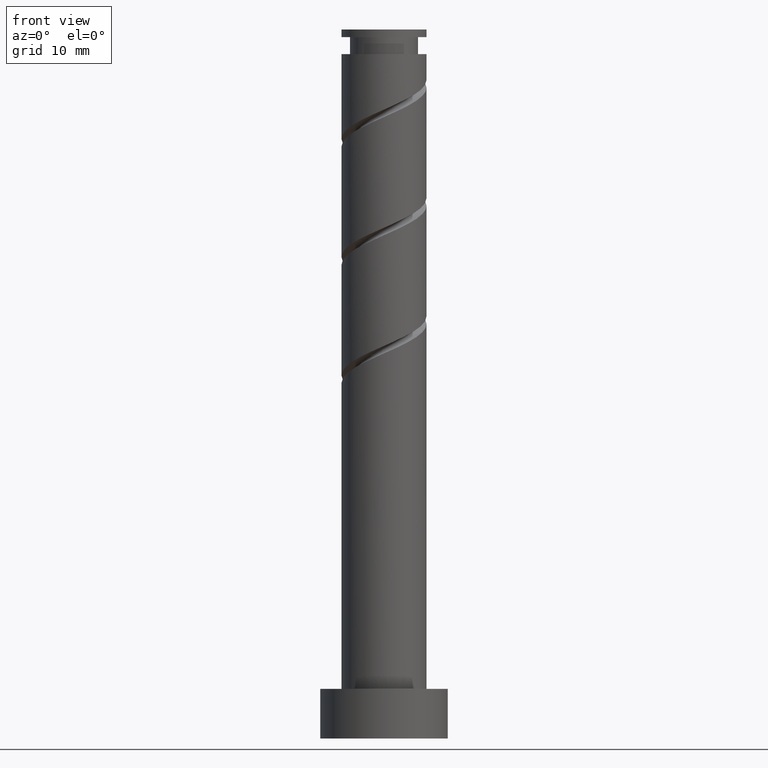
[diagram: clean part render]
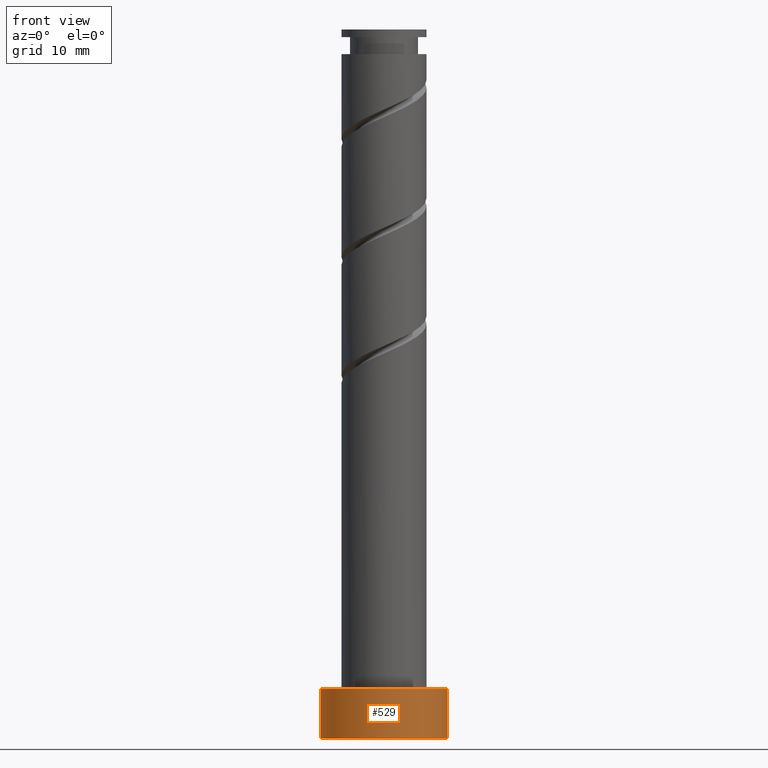
[diagram: same view with one face highlighted and labeled with its STEP entity id]
A machine part, front view. The second image highlights one B-rep face of the part: STEP entity #529.
In plain terms, the highlighted cylindrical surface (partial cylindrical patch) has radius 9 mm, axis along (-0, -0, -1).
Its self-contained STEP definition (entity closure, byte-faithful):
#13 = EDGE_LOOP ( 'NONE', ( #373, #1026, #130, #403 ) ) ;
#77 = FACE_OUTER_BOUND ( 'NONE', #13, .T. ) ;
#125 = VERTEX_POINT ( 'NONE', #1337 ) ;
#130 = ORIENTED_EDGE ( 'NONE', *, *, #882, .T. ) ;
#201 = DIRECTION ( 'NONE',  ( -0.000000000000000000, -0.000000000000000000, -1.000000000000000000 ) ) ;
#217 = CARTESIAN_POINT ( 'NONE',  ( -9.000000000000000000, 0.000000000000000000, 7.000000000000000000 ) ) ;
#234 = DIRECTION ( 'NONE',  ( 0.000000000000000000, 0.000000000000000000, 1.000000000000000000 ) ) ;
#261 = AXIS2_PLACEMENT_3D ( 'NONE', #937, #234, #1395 ) ;
#262 = CARTESIAN_POINT ( 'NONE',  ( -9.000000000000000000, 0.000000000000000000, 0.000000000000000000 ) ) ;
#306 = VERTEX_POINT ( 'NONE', #610 ) ;
#311 = CIRCLE ( 'NONE', #261, 9.000000000000000000 ) ;
#328 = DIRECTION ( 'NONE',  ( -1.000000000000000000, 0.000000000000000000, 0.000000000000000000 ) ) ;
#373 = ORIENTED_EDGE ( 'NONE', *, *, #869, .F. ) ;
#375 = VECTOR ( 'NONE', #201, 1000.000000000000000 ) ;
#403 = ORIENTED_EDGE ( 'NONE', *, *, #1340, .T. ) ;
#408 = VERTEX_POINT ( 'NONE', #1440 ) ;
#515 = DIRECTION ( 'NONE',  ( 0.000000000000000000, 0.000000000000000000, 1.000000000000000000 ) ) ;
#529 = ADVANCED_FACE ( 'NONE', ( #77 ), #1221, .T. ) ;
#610 = CARTESIAN_POINT ( 'NONE',  ( 9.000000000000000000, 1.102182119232617714E-15, 7.000000000000000000 ) ) ;
#626 = CARTESIAN_POINT ( 'NONE',  ( 0.000000000000000000, 0.000000000000000000, 0.000000000000000000 ) ) ;
#633 = AXIS2_PLACEMENT_3D ( 'NONE', #978, #867, #328 ) ;
#707 = AXIS2_PLACEMENT_3D ( 'NONE', #626, #515, #1349 ) ;
#867 = DIRECTION ( 'NONE',  ( -0.000000000000000000, -0.000000000000000000, -1.000000000000000000 ) ) ;
#869 = EDGE_CURVE ( 'NONE', #306, #125, #902, .T. ) ;
#882 = EDGE_CURVE ( 'NONE', #408, #1405, #1009, .T. ) ;
#902 = LINE ( 'NONE', #1237, #375 ) ;
#937 = CARTESIAN_POINT ( 'NONE',  ( 0.000000000000000000, 0.000000000000000000, 7.000000000000000000 ) ) ;
#978 = CARTESIAN_POINT ( 'NONE',  ( 0.000000000000000000, 0.000000000000000000, 7.000000000000000000 ) ) ;
#1009 = LINE ( 'NONE', #217, #1166 ) ;
#1026 = ORIENTED_EDGE ( 'NONE', *, *, #1108, .F. ) ;
#1108 = EDGE_CURVE ( 'NONE', #408, #306, #311, .T. ) ;
#1137 = DIRECTION ( 'NONE',  ( -0.000000000000000000, -0.000000000000000000, -1.000000000000000000 ) ) ;
#1166 = VECTOR ( 'NONE', #1137, 1000.000000000000000 ) ;
#1221 = CYLINDRICAL_SURFACE ( 'NONE', #633, 9.000000000000000000 ) ;
#1237 = CARTESIAN_POINT ( 'NONE',  ( 9.000000000000000000, 1.102182119232617714E-15, 7.000000000000000000 ) ) ;
#1337 = CARTESIAN_POINT ( 'NONE',  ( 9.000000000000000000, 1.102182119232617714E-15, 0.000000000000000000 ) ) ;
#1340 = EDGE_CURVE ( 'NONE', #1405, #125, #1393, .T. ) ;
#1349 = DIRECTION ( 'NONE',  ( 1.000000000000000000, 0.000000000000000000, 0.000000000000000000 ) ) ;
#1393 = CIRCLE ( 'NONE', #707, 9.000000000000000000 ) ;
#1395 = DIRECTION ( 'NONE',  ( 1.000000000000000000, 0.000000000000000000, 0.000000000000000000 ) ) ;
#1405 = VERTEX_POINT ( 'NONE', #262 ) ;
#1440 = CARTESIAN_POINT ( 'NONE',  ( -9.000000000000000000, 0.000000000000000000, 7.000000000000000000 ) ) ;